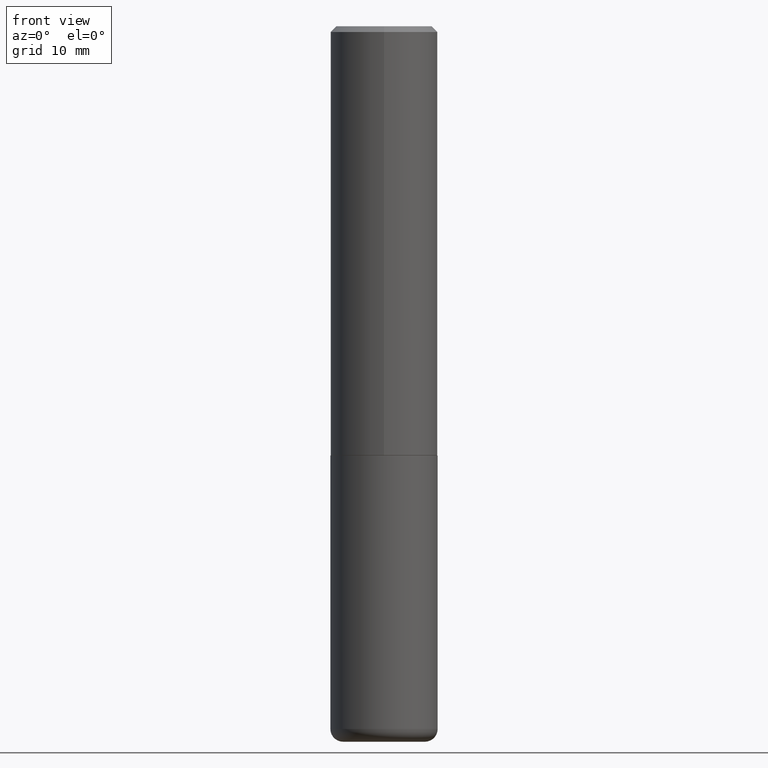
[diagram: clean part render]
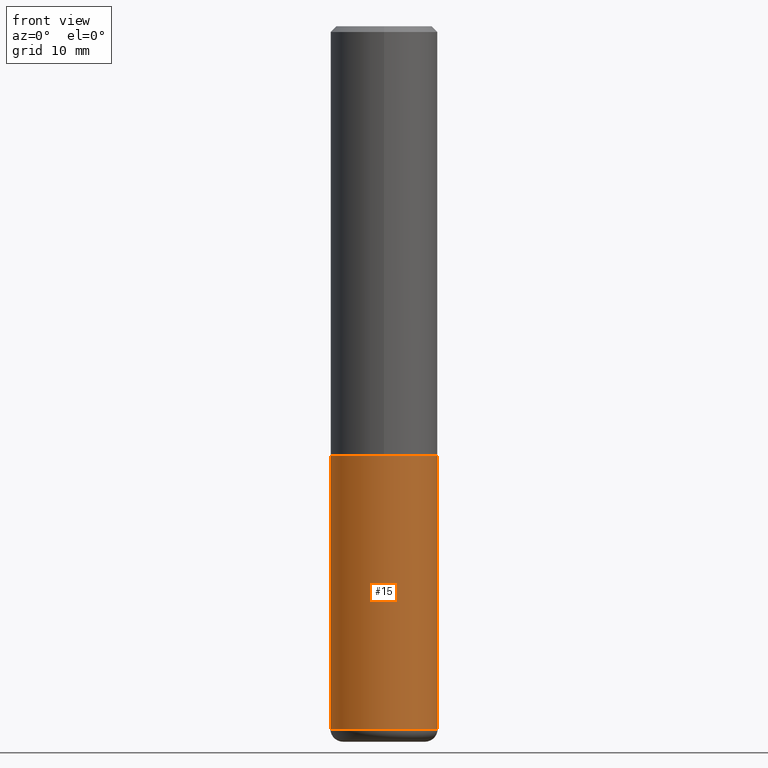
[diagram: same view with one face highlighted and labeled with its STEP entity id]
A machine part, front view. The second image highlights one B-rep face of the part: STEP entity #15.
In plain terms, the highlighted cylindrical surface (partial cylindrical patch) has radius 4.7625 mm, axis along (-0, 0, 1).
Its self-contained STEP definition (entity closure, byte-faithful):
#2 = VERTEX_POINT ( 'NONE', #164 ) ;
#8 = DIRECTION ( 'NONE',  ( -2.445468806185136597E-29, 3.491481338843145583E-15, 1.000000000000000000 ) ) ;
#14 = CARTESIAN_POINT ( 'NONE',  ( 6.003625919184510659E-29, -8.571586686859923311E-15, -2.455000000000000071 ) ) ;
#15 = ADVANCED_FACE ( 'NONE', ( #327 ), #37, .T. ) ;
#23 = ORIENTED_EDGE ( 'NONE', *, *, #166, .T. ) ;
#25 = DIRECTION ( 'NONE',  ( -2.445468806185136597E-29, 3.491481338843145583E-15, 1.000000000000000000 ) ) ;
#26 = ORIENTED_EDGE ( 'NONE', *, *, #341, .T. ) ;
#37 = CYLINDRICAL_SURFACE ( 'NONE', #113, 0.1875000000000000278 ) ;
#82 = VECTOR ( 'NONE', #302, 39.37007874015748143 ) ;
#96 = CARTESIAN_POINT ( 'NONE',  ( -0.1874999999999999722, -7.239319057309735462E-15, -2.455000000000000071 ) ) ;
#113 = AXIS2_PLACEMENT_3D ( 'NONE', #236, #8, #392 ) ;
#120 = EDGE_LOOP ( 'NONE', ( #278, #23, #26, #275 ) ) ;
#141 = EDGE_CURVE ( 'NONE', #383, #255, #400, .T. ) ;
#147 = CARTESIAN_POINT ( 'NONE',  ( -0.1875000000000000278, 1.332267629550188046E-15, -9.223003294227947991E-30 ) ) ;
#159 = CIRCLE ( 'NONE', #401, 0.1875000000000000278 ) ;
#164 = CARTESIAN_POINT ( 'NONE',  ( 0.1875000000000000278, -6.546527510330893974E-15, -1.500000000000000222 ) ) ;
#166 = EDGE_CURVE ( 'NONE', #383, #315, #293, .T. ) ;
#188 = AXIS2_PLACEMENT_3D ( 'NONE', #14, #245, #211 ) ;
#211 = DIRECTION ( 'NONE',  ( 1.000000000000000000, -6.982962677686266711E-15, 0.000000000000000000 ) ) ;
#215 = VECTOR ( 'NONE', #316, 39.37007874015748143 ) ;
#219 = LINE ( 'NONE', #385, #215 ) ;
#236 = CARTESIAN_POINT ( 'NONE',  ( 0.000000000000000000, 0.000000000000000000, 0.000000000000000000 ) ) ;
#244 = CARTESIAN_POINT ( 'NONE',  ( -0.1875000000000000278, -5.572136718012132501E-15, -1.500000000000000222 ) ) ;
#245 = DIRECTION ( 'NONE',  ( -2.445468806185136597E-29, 3.491481338843145583E-15, 1.000000000000000000 ) ) ;
#255 = VERTEX_POINT ( 'NONE', #244 ) ;
#275 = ORIENTED_EDGE ( 'NONE', *, *, #325, .F. ) ;
#278 = ORIENTED_EDGE ( 'NONE', *, *, #141, .F. ) ;
#293 = CIRCLE ( 'NONE', #188, 0.1875000000000000278 ) ;
#302 = DIRECTION ( 'NONE',  ( -2.445468806185136877E-29, 3.491481338843145188E-15, 1.000000000000000000 ) ) ;
#315 = VERTEX_POINT ( 'NONE', #406 ) ;
#316 = DIRECTION ( 'NONE',  ( -2.445468806185136877E-29, 3.491481338843145188E-15, 1.000000000000000000 ) ) ;
#325 = EDGE_CURVE ( 'NONE', #255, #2, #159, .T. ) ;
#327 = FACE_OUTER_BOUND ( 'NONE', #120, .T. ) ;
#341 = EDGE_CURVE ( 'NONE', #315, #2, #219, .T. ) ;
#353 = CARTESIAN_POINT ( 'NONE',  ( 3.668203209277704895E-29, -5.237222008264718177E-15, -1.500000000000000222 ) ) ;
#383 = VERTEX_POINT ( 'NONE', #96 ) ;
#385 = CARTESIAN_POINT ( 'NONE',  ( 0.1875000000000000278, -1.309305502066175008E-15, 9.142831454617381013E-30 ) ) ;
#392 = DIRECTION ( 'NONE',  ( 1.000000000000000000, -6.982962677686265922E-15, 4.876176775795935793E-29 ) ) ;
#400 = LINE ( 'NONE', #147, #82 ) ;
#401 = AXIS2_PLACEMENT_3D ( 'NONE', #353, #25, #412 ) ;
#406 = CARTESIAN_POINT ( 'NONE',  ( 0.1874999999999999722, -9.880892188926098319E-15, -2.455000000000000071 ) ) ;
#412 = DIRECTION ( 'NONE',  ( 1.000000000000000000, -6.982962677686266711E-15, 0.000000000000000000 ) ) ;